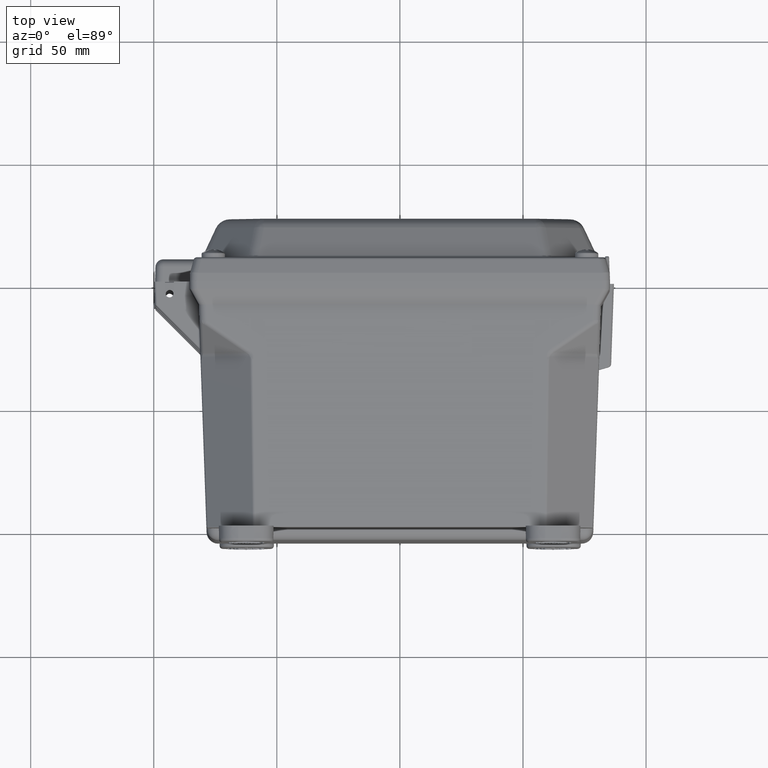
[diagram: clean part render]
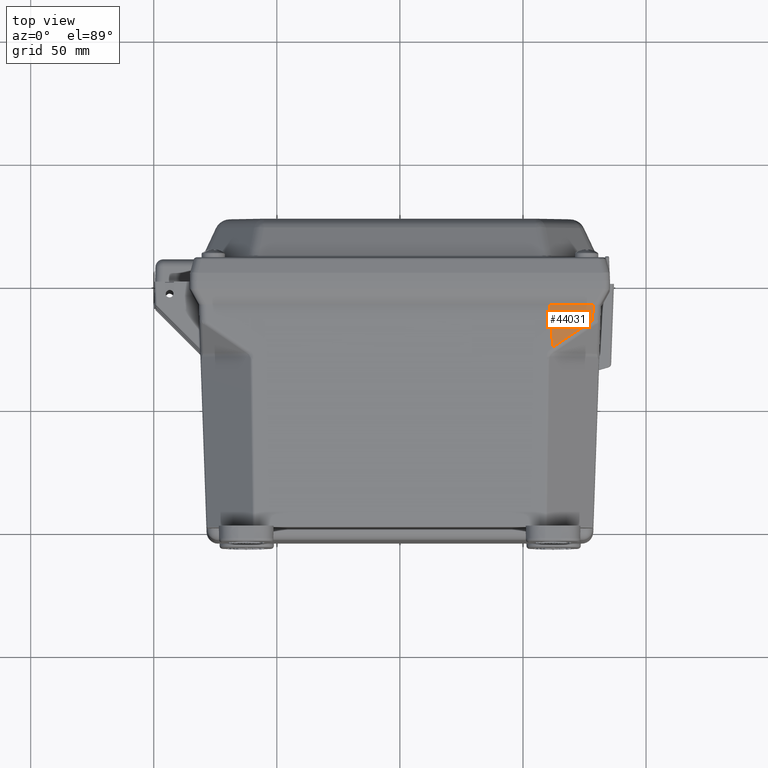
[diagram: same view with one face highlighted and labeled with its STEP entity id]
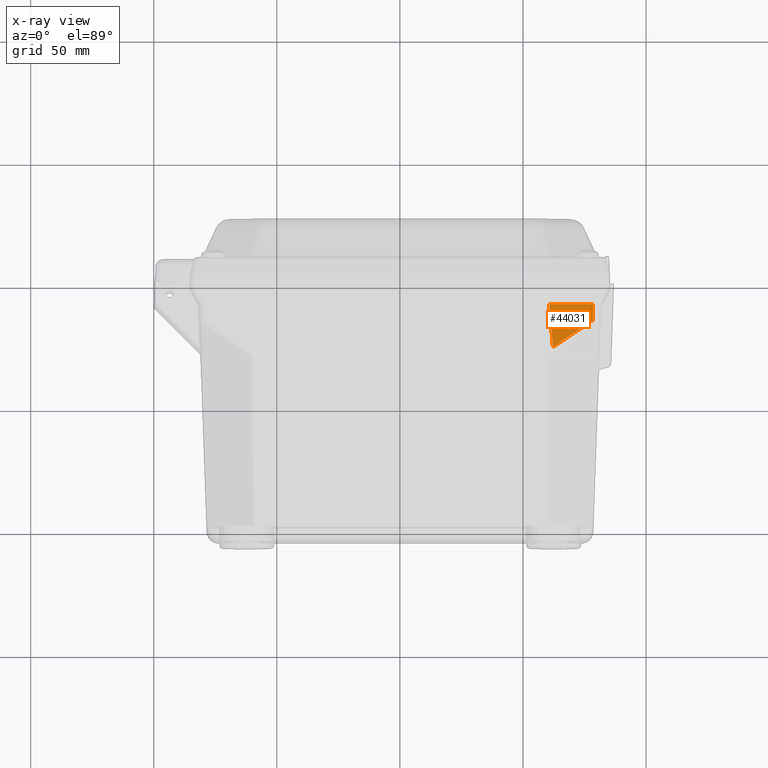
[diagram: x-ray of the same camera — body ghosted, the highlighted face saturated]
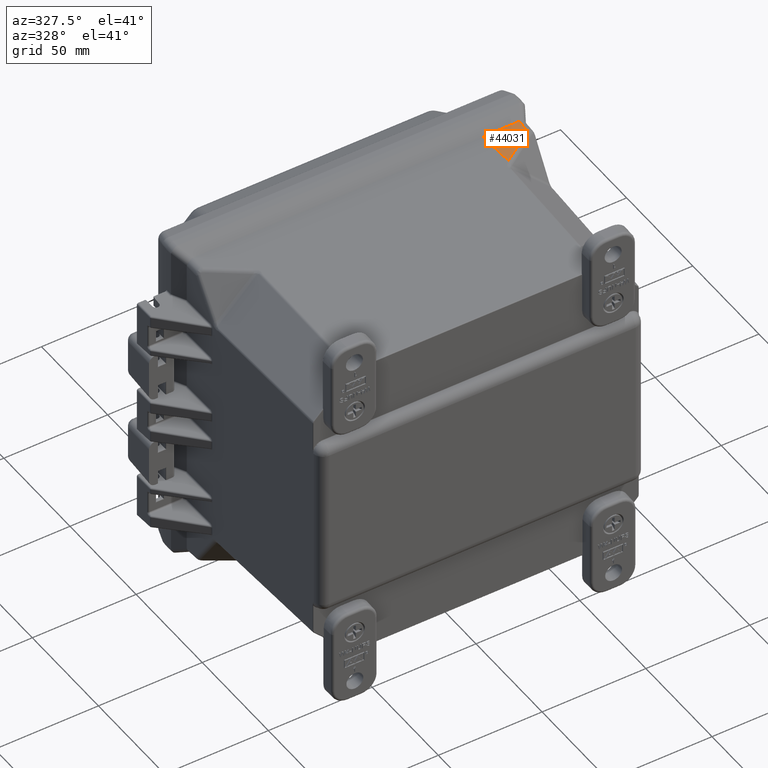
[diagram: same view with one face highlighted and labeled with its STEP entity id]
A machine part, top view. The second image highlights one B-rep face of the part: STEP entity #44031.
The next image is the same camera in x-ray: the body ghosted, the highlighted face saturated — about 0% of this face is hidden behind the body in this view.
A second angle (auxiliary view) of the same face is appended — the face is thin or edge-on in the first view.
In plain terms, the highlighted planar face has unit normal (0, -0.0349, 0.9994).
Its self-contained STEP definition (entity closure, byte-faithful):
#2940 = ORIENTED_EDGE ( 'NONE', *, *, #105425, .T. ) ;
#4712 = CARTESIAN_POINT ( 'NONE',  ( 3.294868727906154600, -0.4912038132954387700, 3.102285851034526100 ) ) ;
#5530 = ORIENTED_EDGE ( 'NONE', *, *, #28583, .T. ) ;
#7428 = VECTOR ( 'NONE', #35282, 39.37007874015748100 ) ;
#9587 = DIRECTION ( 'NONE',  ( -0.08395736372788353800, 0.9958623255824314800, 0.03477627871717999000 ) ) ;
#13756 = VERTEX_POINT ( 'NONE', #85074 ) ;
#14048 = PLANE ( 'NONE',  #103530 ) ;
#21971 = DIRECTION ( 'NONE',  ( -1.000000000000000000, -0.0000000000000000000, -0.0000000000000000000 ) ) ;
#22811 = DIRECTION ( 'NONE',  ( 0.0000000000000000000, -0.9993908270190957600, -0.03489949670250104600 ) ) ;
#23149 = ORIENTED_EDGE ( 'NONE', *, *, #78712, .T. ) ;
#28583 = EDGE_CURVE ( 'NONE', #13756, #77739, #76837, .T. ) ;
#28673 = CARTESIAN_POINT ( 'NONE',  ( 3.091419924235292400, -0.3749999999999999400, 3.106343777612678500 ) ) ;
#29837 = VECTOR ( 'NONE', #9587, 39.37007874015748900 ) ;
#33275 = CARTESIAN_POINT ( 'NONE',  ( 2.446417912018473900, -1.063847767218942100, 3.082288683518720400 ) ) ;
#34946 = CARTESIAN_POINT ( 'NONE',  ( 2.388343777612680400, -0.3749999999999998900, 3.106343777612679400 ) ) ;
#35082 = VECTOR ( 'NONE', #21971, 39.37007874015748100 ) ;
#35282 = DIRECTION ( 'NONE',  ( 0.03487826274237469700, 0.9987827659587182900, 0.03487826274237469000 ) ) ;
#39950 = CARTESIAN_POINT ( 'NONE',  ( 3.216343777612679300, -0.3749999999999999400, 3.106343777612678500 ) ) ;
#43228 = FACE_OUTER_BOUND ( 'NONE', #57321, .T. ) ;
#44031 = ADVANCED_FACE ( 'NONE', ( #43228 ), #14048, .T. ) ;
#52965 = CARTESIAN_POINT ( 'NONE',  ( 2.388343777612679000, -0.3749999999999999400, 3.106343777612678500 ) ) ;
#57321 = EDGE_LOOP ( 'NONE', ( #79097, #2940, #5530, #23149 ) ) ;
#57791 = VECTOR ( 'NONE', #91824, 39.37007874015748900 ) ;
#68793 = CARTESIAN_POINT ( 'NONE',  ( 3.091571893254933600, -0.3706481766623969100, 3.106495746632319800 ) ) ;
#74907 = DIRECTION ( 'NONE',  ( 0.0000000000000000000, -0.03489949670250104600, 0.9993908270190957600 ) ) ;
#76837 = LINE ( 'NONE', #68793, #7428 ) ;
#77739 = VERTEX_POINT ( 'NONE', #28673 ) ;
#78712 = EDGE_CURVE ( 'NONE', #77739, #103895, #81312, .T. ) ;
#79097 = ORIENTED_EDGE ( 'NONE', *, *, #94056, .F. ) ;
#80852 = LINE ( 'NONE', #4712, #57791 ) ;
#81312 = LINE ( 'NONE', #91539, #35082 ) ;
#84077 = VERTEX_POINT ( 'NONE', #33275 ) ;
#85074 = CARTESIAN_POINT ( 'NONE',  ( 3.082353211886685000, -0.6346366712580540100, 3.097277065264071100 ) ) ;
#91539 = CARTESIAN_POINT ( 'NONE',  ( 3.355634903813532200, -0.3749999999999999400, 3.106343777612678500 ) ) ;
#91824 = DIRECTION ( 'NONE',  ( 0.8287178872851431700, 0.5593256306384641900, 0.01953208141835228300 ) ) ;
#94056 = EDGE_CURVE ( 'NONE', #84077, #103895, #104772, .T. ) ;
#103530 = AXIS2_PLACEMENT_3D ( 'NONE', #39950, #74907, #22811 ) ;
#103895 = VERTEX_POINT ( 'NONE', #34946 ) ;
#104772 = LINE ( 'NONE', #52965, #29837 ) ;
#105425 = EDGE_CURVE ( 'NONE', #84077, #13756, #80852, .T. ) ;